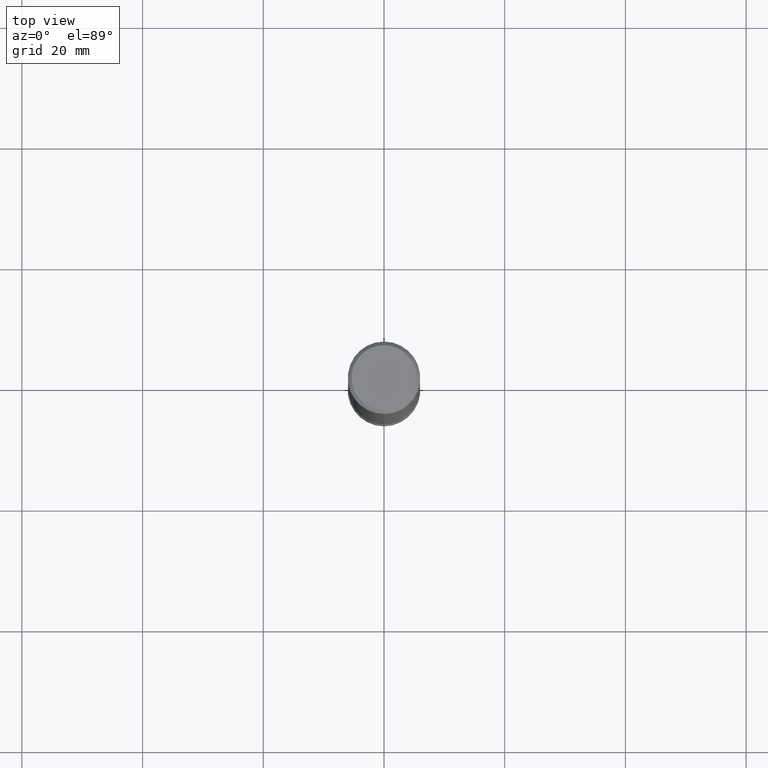
[diagram: clean part render]
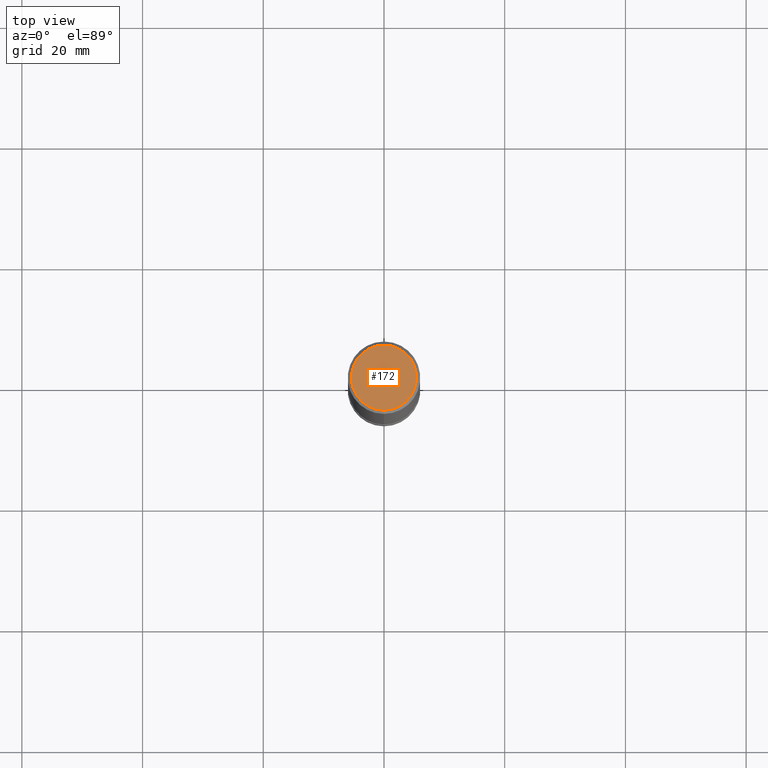
[diagram: same view with one face highlighted and labeled with its STEP entity id]
A machine part, top view. The second image highlights one B-rep face of the part: STEP entity #172.
In plain terms, the highlighted planar face has unit normal (-0, 0, 1).
Its self-contained STEP definition (entity closure, byte-faithful):
#166=VERTEX_POINT('',#312);
#168=EDGE_CURVE('',#196,#166,#314,.T.);
#172=ADVANCED_FACE('',(#319),#320,.T.);
#196=VERTEX_POINT('',#347);
#208=EDGE_CURVE('',#166,#196,#361,.T.);
#312=CARTESIAN_POINT('',(6.61287431064084E-016,-5.4,0.0));
#314=CIRCLE('',#484,5.4);
#319=FACE_OUTER_BOUND('',#489,.T.);
#320=PLANE('',#490);
#347=CARTESIAN_POINT('',(0.0,5.4,0.0));
#361=CIRCLE('',#538,5.4);
#484=AXIS2_PLACEMENT_3D('',#652,#653,#654);
#489=EDGE_LOOP('',(#664,#665));
#490=AXIS2_PLACEMENT_3D('',#666,#667,#668);
#538=AXIS2_PLACEMENT_3D('',#713,#714,#715);
#652=CARTESIAN_POINT('',(0.0,0.0,0.0));
#653=DIRECTION('',(0.0,0.0,-1.0));
#654=DIRECTION('',(0.0,1.0,0.0));
#664=ORIENTED_EDGE('',*,*,#168,.F.);
#665=ORIENTED_EDGE('',*,*,#208,.F.);
#666=CARTESIAN_POINT('',(0.0,2.7,0.0));
#667=DIRECTION('',(-0.0,0.0,1.0));
#668=DIRECTION('',(0.0,-1.0,0.0));
#713=CARTESIAN_POINT('',(0.0,0.0,0.0));
#714=DIRECTION('',(0.0,0.0,-1.0));
#715=DIRECTION('',(0.0,1.0,0.0));